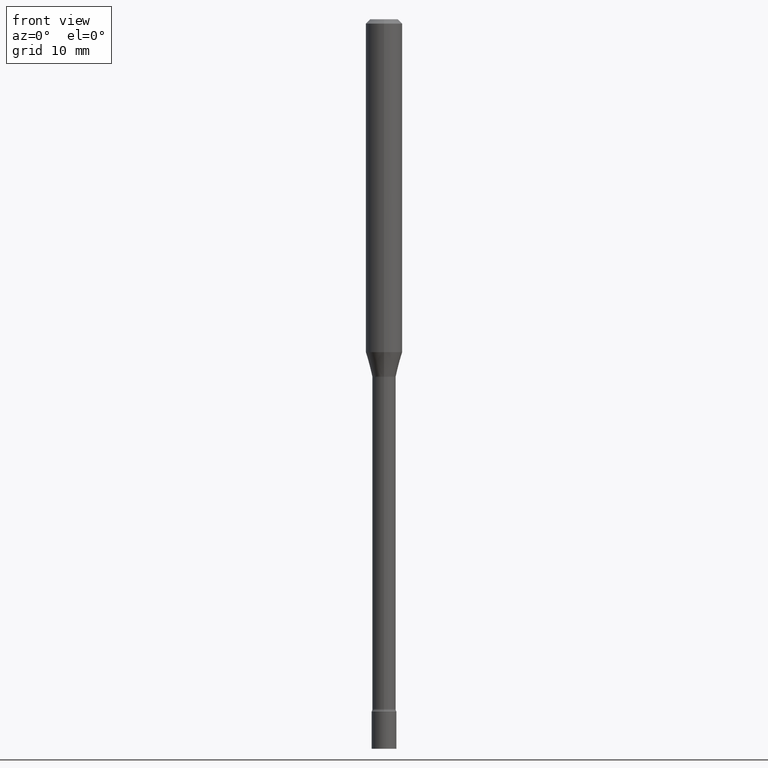
[diagram: clean part render]
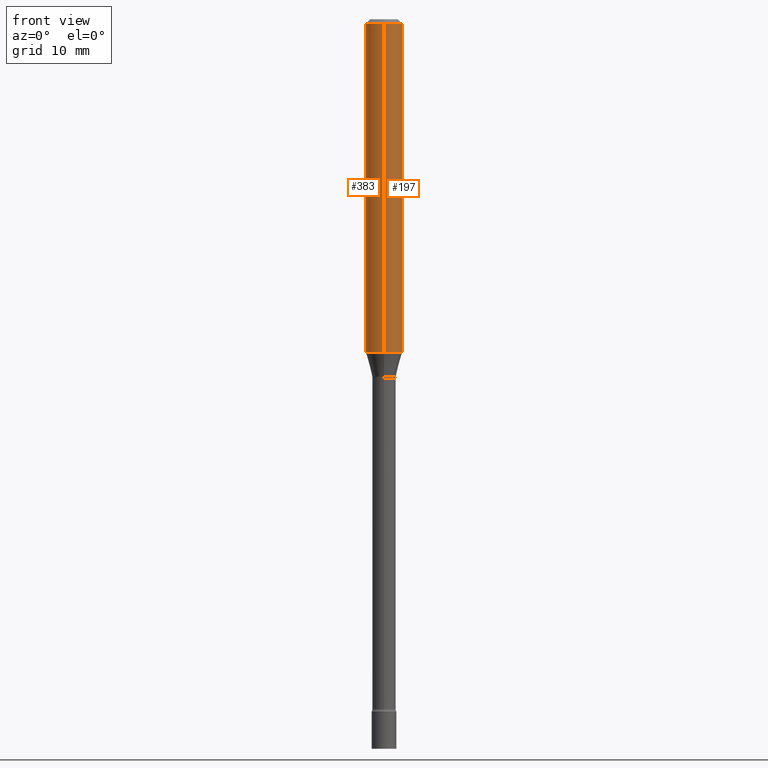
[diagram: same view with one multi-face feature highlighted, each face labeled with its STEP entity id]
A machine part, front view. The highlighted faces form ONE feature: a constant-radius fillet chain: 2 tangent blend faces with common blend radius 1.5875 mm. The faces share edges in the B-rep.
Their STEP definitions:
[1] entity #383 (Cylinder):
#1 = VERTEX_POINT ( 'NONE', #287 ) ;
#2 = DIRECTION ( 'NONE',  ( -2.445510009417752307E-29, 3.491422333468896927E-15, 1.000000000000000000 ) ) ;
#25 = ORIENTED_EDGE ( 'NONE', *, *, #251, .T. ) ;
#26 = CARTESIAN_POINT ( 'NONE',  ( -4.364351673553637635E-16, -0.06250000000000398293, -1.140842254289321733 ) ) ;
#47 = EDGE_LOOP ( 'NONE', ( #78, #25, #330, #221 ) ) ;
#62 = DIRECTION ( 'NONE',  ( -2.445510009417752307E-29, 3.491422333468896927E-15, 1.000000000000000000 ) ) ;
#78 = ORIENTED_EDGE ( 'NONE', *, *, #448, .F. ) ;
#84 = CARTESIAN_POINT ( 'NONE',  ( -4.364351673553916201E-16, -0.06250000000000000000, 2.182138958418060826E-16 ) ) ;
#90 = VECTOR ( 'NONE', #2, 39.37007874015748143 ) ;
#92 = CARTESIAN_POINT ( 'NONE',  ( 4.440892098500625669E-16, 0.06250000000000000000, -2.182138958418060826E-16 ) ) ;
#106 = VERTEX_POINT ( 'NONE', #161 ) ;
#148 = AXIS2_PLACEMENT_3D ( 'NONE', #286, #447, #160 ) ;
#149 = AXIS2_PLACEMENT_3D ( 'NONE', #240, #162, #320 ) ;
#160 = DIRECTION ( 'NONE',  ( -6.982962677686265922E-15, -1.000000000000000000, 4.370956789862821150E-15 ) ) ;
#161 = CARTESIAN_POINT ( 'NONE',  ( 4.440892098500904235E-16, 0.06249999999999603095, -1.140842254289322177 ) ) ;
#162 = DIRECTION ( 'NONE',  ( -2.445510009417752588E-29, 3.491422333468897321E-15, 1.000000000000000000 ) ) ;
#168 = CIRCLE ( 'NONE', #169, 0.06250000000000000000 ) ;
#169 = AXIS2_PLACEMENT_3D ( 'NONE', #385, #346, #338 ) ;
#208 = LINE ( 'NONE', #84, #90 ) ;
#215 = CYLINDRICAL_SURFACE ( 'NONE', #149, 0.06250000000000000000 ) ;
#221 = ORIENTED_EDGE ( 'NONE', *, *, #472, .F. ) ;
#228 = VERTEX_POINT ( 'NONE', #370 ) ;
#240 = CARTESIAN_POINT ( 'NONE',  ( 0.000000000000000000, 0.000000000000000000, 0.000000000000000000 ) ) ;
#251 = EDGE_CURVE ( 'NONE', #106, #464, #316, .T. ) ;
#286 = CARTESIAN_POINT ( 'NONE',  ( 2.789941152031250282E-29, -3.983162125590741875E-15, -1.140842254289322177 ) ) ;
#287 = CARTESIAN_POINT ( 'NONE',  ( -4.364351673553912750E-16, -0.06250000000000005551, -0.01499999999999981209 ) ) ;
#306 = LINE ( 'NONE', #92, #443 ) ;
#316 = CIRCLE ( 'NONE', #148, 0.06250000000000000000 ) ;
#320 = DIRECTION ( 'NONE',  ( -6.982962677686265922E-15, -1.000000000000000000, 3.491422333468897321E-15 ) ) ;
#330 = ORIENTED_EDGE ( 'NONE', *, *, #372, .T. ) ;
#338 = DIRECTION ( 'NONE',  ( -6.982962677686265922E-15, -1.000000000000000000, 3.483106191921935554E-15 ) ) ;
#346 = DIRECTION ( 'NONE',  ( -2.445510009417752588E-29, 3.491422333468897321E-15, 1.000000000000000000 ) ) ;
#365 = FACE_OUTER_BOUND ( 'NONE', #47, .T. ) ;
#370 = CARTESIAN_POINT ( 'NONE',  ( 4.440892098500906207E-16, 0.06249999999999993755, -0.01500000000000024751 ) ) ;
#372 = EDGE_CURVE ( 'NONE', #464, #1, #208, .T. ) ;
#383 = ADVANCED_FACE ( 'NONE', ( #365 ), #215, .T. ) ;
#385 = CARTESIAN_POINT ( 'NONE',  ( 3.668265014126635783E-31, -5.237133500203356730E-17, -0.01500000000000003067 ) ) ;
#443 = VECTOR ( 'NONE', #62, 39.37007874015748143 ) ;
#447 = DIRECTION ( 'NONE',  ( -2.445510009417752588E-29, 3.491422333468897321E-15, 1.000000000000000000 ) ) ;
#448 = EDGE_CURVE ( 'NONE', #106, #228, #306, .T. ) ;
#464 = VERTEX_POINT ( 'NONE', #26 ) ;
#472 = EDGE_CURVE ( 'NONE', #228, #1, #168, .T. ) ;
[2] entity #197 (Cylinder):
#1 = VERTEX_POINT ( 'NONE', #287 ) ;
#2 = DIRECTION ( 'NONE',  ( -2.445510009417752307E-29, 3.491422333468896927E-15, 1.000000000000000000 ) ) ;
#13 = CYLINDRICAL_SURFACE ( 'NONE', #157, 0.06250000000000000000 ) ;
#26 = CARTESIAN_POINT ( 'NONE',  ( -4.364351673553637635E-16, -0.06250000000000398293, -1.140842254289321733 ) ) ;
#34 = AXIS2_PLACEMENT_3D ( 'NONE', #301, #457, #373 ) ;
#41 = AXIS2_PLACEMENT_3D ( 'NONE', #334, #294, #178 ) ;
#62 = DIRECTION ( 'NONE',  ( -2.445510009417752307E-29, 3.491422333468896927E-15, 1.000000000000000000 ) ) ;
#84 = CARTESIAN_POINT ( 'NONE',  ( -4.364351673553916201E-16, -0.06250000000000000000, 2.182138958418060826E-16 ) ) ;
#89 = ORIENTED_EDGE ( 'NONE', *, *, #125, .F. ) ;
#90 = VECTOR ( 'NONE', #2, 39.37007874015748143 ) ;
#92 = CARTESIAN_POINT ( 'NONE',  ( 4.440892098500625669E-16, 0.06250000000000000000, -2.182138958418060826E-16 ) ) ;
#97 = ORIENTED_EDGE ( 'NONE', *, *, #372, .F. ) ;
#106 = VERTEX_POINT ( 'NONE', #161 ) ;
#125 = EDGE_CURVE ( 'NONE', #1, #228, #260, .T. ) ;
#136 = DIRECTION ( 'NONE',  ( -2.445510009417752588E-29, 3.491422333468897321E-15, 1.000000000000000000 ) ) ;
#152 = ORIENTED_EDGE ( 'NONE', *, *, #440, .T. ) ;
#157 = AXIS2_PLACEMENT_3D ( 'NONE', #183, #136, #340 ) ;
#161 = CARTESIAN_POINT ( 'NONE',  ( 4.440892098500904235E-16, 0.06249999999999603095, -1.140842254289322177 ) ) ;
#178 = DIRECTION ( 'NONE',  ( -6.982962677686265922E-15, -1.000000000000000000, 3.483106191921935554E-15 ) ) ;
#183 = CARTESIAN_POINT ( 'NONE',  ( 0.000000000000000000, 0.000000000000000000, 0.000000000000000000 ) ) ;
#195 = CIRCLE ( 'NONE', #34, 0.06250000000000000000 ) ;
#197 = ADVANCED_FACE ( 'NONE', ( #250 ), #13, .T. ) ;
#208 = LINE ( 'NONE', #84, #90 ) ;
#228 = VERTEX_POINT ( 'NONE', #370 ) ;
#250 = FACE_OUTER_BOUND ( 'NONE', #324, .T. ) ;
#260 = CIRCLE ( 'NONE', #41, 0.06250000000000000000 ) ;
#287 = CARTESIAN_POINT ( 'NONE',  ( -4.364351673553912750E-16, -0.06250000000000005551, -0.01499999999999981209 ) ) ;
#294 = DIRECTION ( 'NONE',  ( -2.445510009417752588E-29, 3.491422333468897321E-15, 1.000000000000000000 ) ) ;
#301 = CARTESIAN_POINT ( 'NONE',  ( 2.789941152031250282E-29, -3.983162125590741875E-15, -1.140842254289322177 ) ) ;
#306 = LINE ( 'NONE', #92, #443 ) ;
#324 = EDGE_LOOP ( 'NONE', ( #152, #459, #89, #97 ) ) ;
#334 = CARTESIAN_POINT ( 'NONE',  ( 3.668265014126635783E-31, -5.237133500203356730E-17, -0.01500000000000003067 ) ) ;
#340 = DIRECTION ( 'NONE',  ( -6.982962677686265922E-15, -1.000000000000000000, 3.491422333468897321E-15 ) ) ;
#370 = CARTESIAN_POINT ( 'NONE',  ( 4.440892098500906207E-16, 0.06249999999999993755, -0.01500000000000024751 ) ) ;
#372 = EDGE_CURVE ( 'NONE', #464, #1, #208, .T. ) ;
#373 = DIRECTION ( 'NONE',  ( -6.982962677686265922E-15, -1.000000000000000000, 4.370956789862821150E-15 ) ) ;
#440 = EDGE_CURVE ( 'NONE', #464, #106, #195, .T. ) ;
#443 = VECTOR ( 'NONE', #62, 39.37007874015748143 ) ;
#448 = EDGE_CURVE ( 'NONE', #106, #228, #306, .T. ) ;
#457 = DIRECTION ( 'NONE',  ( -2.445510009417752588E-29, 3.491422333468897321E-15, 1.000000000000000000 ) ) ;
#459 = ORIENTED_EDGE ( 'NONE', *, *, #448, .T. ) ;
#464 = VERTEX_POINT ( 'NONE', #26 ) ;